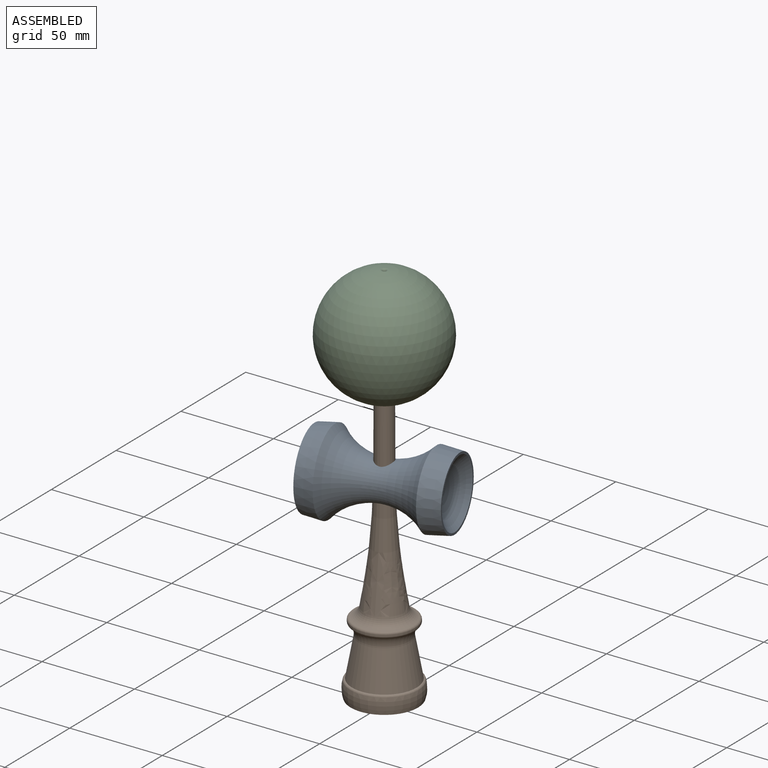
[diagram: assembled view]
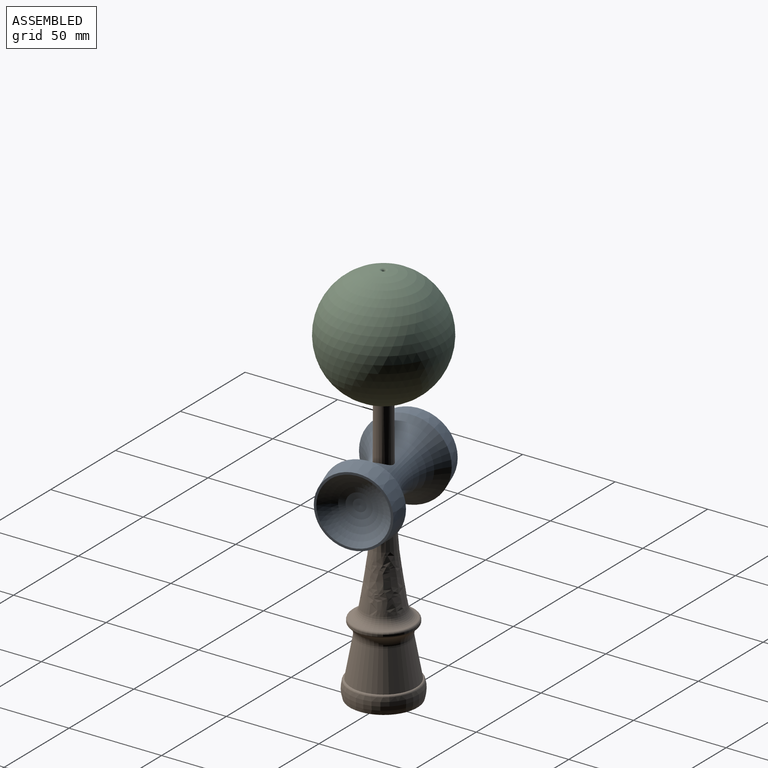
[diagram: assembled view, second angle]
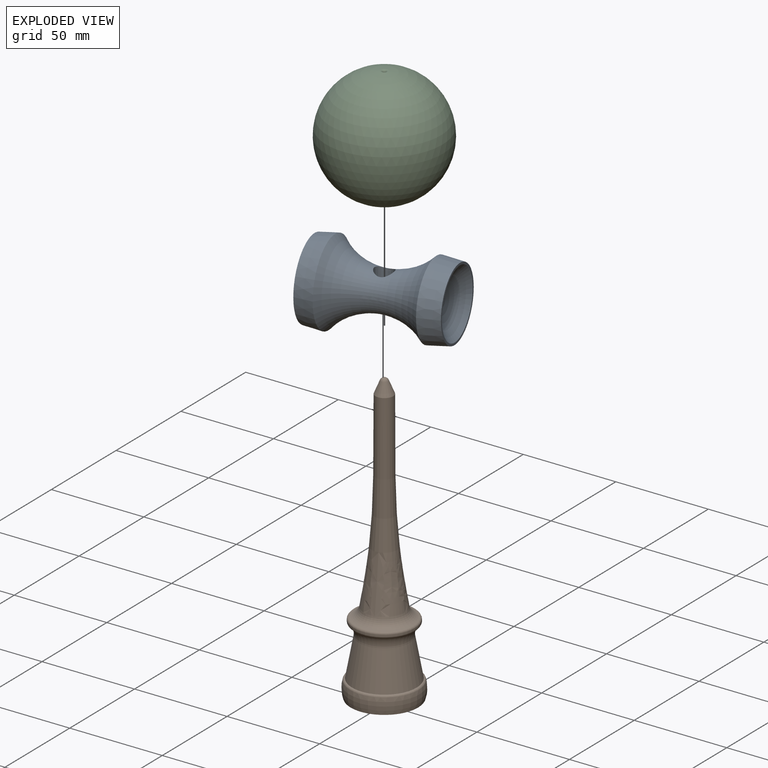
[diagram: exploded view]
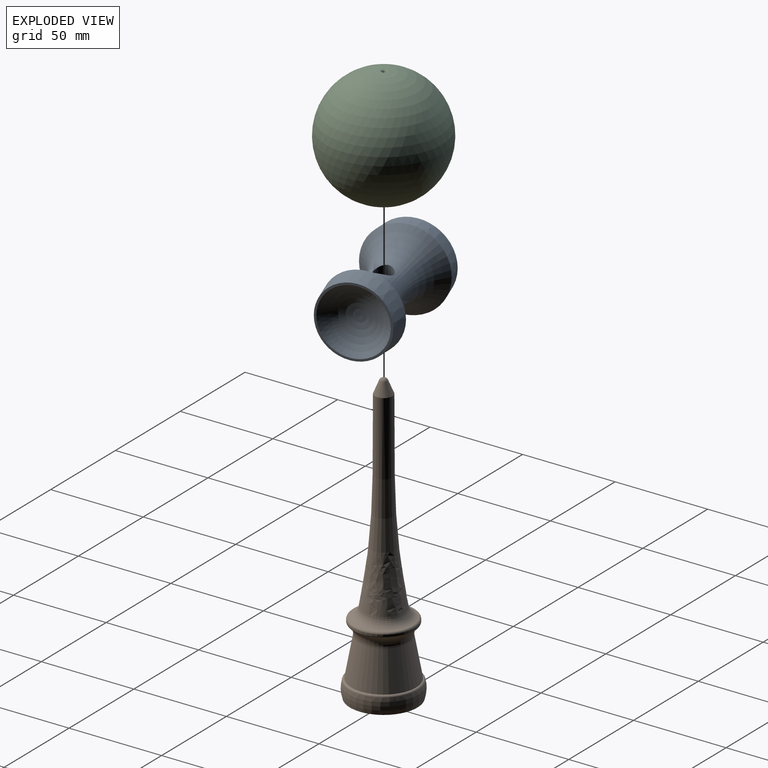
[diagram: exploded view, second angle]
ASSEMBLY  parts=3 mates=2
PART A: 8 faces, bbox 92.8x92.8x69.9 mm
  f0: torus R=42.86mm, axis (0,0,1), area 4713.6mm2, adj f1,f4,f7
  f1: cone r=21.03mm half-angle=7deg, axis (0,0,-1), area 1336mm2, adj f0,f2
  f2: plane 42.07x42.07mm, normal (0,0,1), area 152.9mm2, adj f1,f3
  f3: sphere r=25.4mm, area 1523.3mm2, adj f2
  f4: cone r=19.05mm half-angle=7deg, axis (0,0,1), area 1417.1mm2, adj f0,f5
  f5: plane 38.1x38.1mm, normal (0,0,-1), area 138.1mm2, adj f4,f6
  f6: sphere r=25.4mm, area 1171.2mm2, adj f5
  f7: cone r=5.36mm half-angle=1deg, axis (0,-1,0), area 636.2mm2, adj f0
PART B: 13 faces, bbox 43.1x43.1x156.4 mm
  f0: revolved ~34.93x34.93mm, area 2064.5mm2, adj f9,f12
  f1: sphere r=25.4mm, area 995mm2, adj f2
  f2: plane 36.51x36.51mm, normal (0,0,-1), area 174.2mm2, adj f1,f3
  f3: torus R=4.37mm, axis (0,0,-1), area 1039.4mm2, adj f2,f12
  f4: cylinder r=16.67mm len=33.34mm, axis (0,0,-1), area 78.8mm2, adj f10,f11
  f5: sphere r=2.21mm, area 18.9mm2, adj f6
  f6: cone r=2.04mm half-angle=22.5deg, axis (0,0,-1), area 152.1mm2, adj f5,f7
  f7: revolved ~103.91x22.24mm, area 4068.9mm2, adj f6,f8
  f8: torus R=17.38mm, axis (0,0,-1), area 591.9mm2, adj f7,f11
  f9: torus R=19.9mm, axis (0,0,-1), area 641.9mm2, adj f0,f10
  f10: torus R=15.48mm, axis (0,0,-1), area 116.6mm2, adj f4,f9
  f11: torus R=15.48mm, axis (0,0,-1), area 161mm2, adj f4,f8
  f12: torus R=17.38mm, axis (0,0,1), area 166.5mm2, adj f0,f3
PART C: 10 faces, bbox 63.5x63.5x61.9 mm
  f0: cone r=0mm half-angle=59deg, axis (0,0,-1), area 115.2mm2, adj f5,f9
  f1: sphere r=31.75mm, area 12328.8mm2, adj f6,f7
  f2: cylinder r=6.35mm len=42.22mm, axis (0,0,-1), area 1684.7mm2, adj f8,f9
  f3: cone r=6.35mm half-angle=22.5deg, axis (0,0,-1), area 262.4mm2, adj f7,f8
  f4: cylinder r=0.79mm len=7.43mm, axis (0,0,-1), area 37.1mm2, adj f5,f6
  f5: torus R=1.98mm, axis (0,0,-1), area 7.7mm2, adj f0,f4
  f6: torus R=1.98mm, axis (0,0,-1), area 15.4mm2, adj f1,f4
  f7: torus R=9.67mm, axis (0,0,1), area 103.5mm2, adj f1,f3
  f8: torus R=7.54mm, axis (0,0,1), area 18.7mm2, adj f2,f3
  f9: torus R=5.16mm, axis (0,0,-1), area 47.4mm2, adj f0,f2
PLACE A rot(axis=(0.66,-0.53,-0.53),113deg) t=(0,0,105.84)mm
PLACE B rot(axis=(0,0,1),102.6deg) t=(0,0,0)mm
PLACE C rot(axis=(0,0,-1),77.4deg) t=(0,0,177.23)mm
MATE slider A.f7 <-> B.f3  axis (0,0,-1) through (0,0,116.68)mm
MATE slider C.f0 <-> B.f3  axis (0,0,-1) through (0,0,153.39)mm
